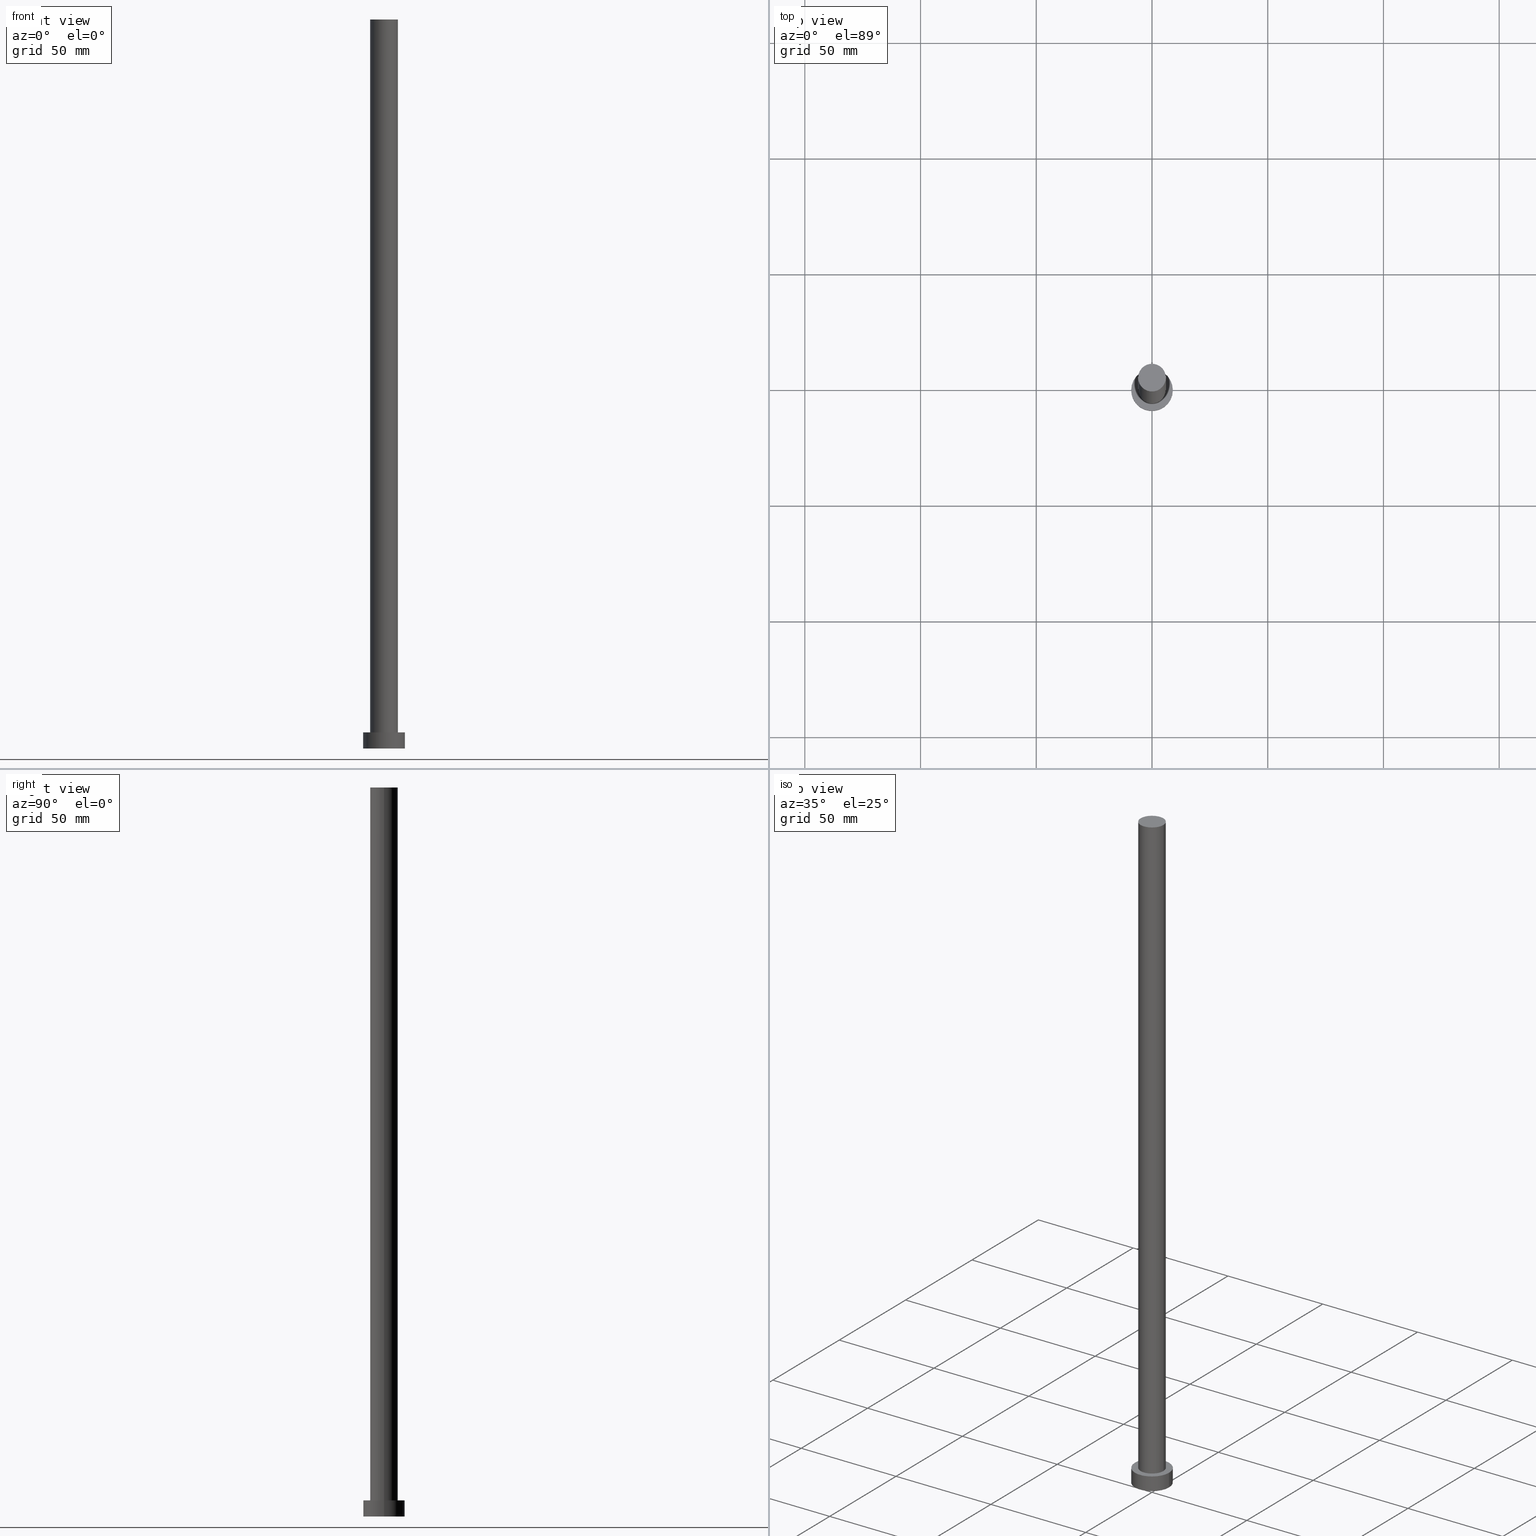
[diagram: canonical four-view strip — front | top / right | iso, engineering-drawing reading convention]
A machine part, canonical four-view strip (front | top / right | iso — engineering-drawing reading convention). The complete STEP part file that produces these views, byte-faithful:
ISO-10303-21;
HEADER;
FILE_DESCRIPTION (( 'STEP AP203' ),
    '1' );
FILE_NAME ('f374.STEP',
    '2023-02-13T08:56:27',
    ( '' ),
    ( '' ),
    'SwSTEP 2.0',
    'SolidWorks 2019',
    '' );
FILE_SCHEMA (( 'CONFIG_CONTROL_DESIGN' ));
ENDSEC;

DATA;
#1 =( GEOMETRIC_REPRESENTATION_CONTEXT ( 3 ) GLOBAL_UNCERTAINTY_ASSIGNED_CONTEXT ( ( #94 ) ) GLOBAL_UNIT_ASSIGNED_CONTEXT ( ( #123, #214, #25 ) ) REPRESENTATION_CONTEXT ( 'NONE', 'WORKASPACE' ) );
#2 = ORIENTED_EDGE ( 'NONE', *, *, #96, .T. ) ;
#3 = FACE_OUTER_BOUND ( 'NONE', #176, .T. ) ;
#4 = VERTEX_POINT ( 'NONE', #116 ) ;
#5 = AXIS2_PLACEMENT_3D ( 'NONE', #247, #115, #181 ) ;
#6 = CALENDAR_DATE ( 2023, 13, 2 ) ;
#7 = PERSON_AND_ORGANIZATION_ROLE ( 'design_owner' ) ;
#8 = APPLICATION_CONTEXT ( 'configuration controlled 3d designs of mechanical parts and assemblies' ) ;
#9 = EDGE_LOOP ( 'NONE', ( #200, #76 ) ) ;
#10 = APPROVAL ( #16, 'NEUR�EN�' ) ;
#11 = APPROVAL_DATE_TIME ( #197, #140 ) ;
#12 = CIRCLE ( 'NONE', #189, 6.000000000000000888 ) ;
#13 = ORIENTED_EDGE ( 'NONE', *, *, #182, .T. ) ;
#14 = AXIS2_PLACEMENT_3D ( 'NONE', #255, #104, #124 ) ;
#15 = LINE ( 'NONE', #228, #173 ) ;
#16 = APPROVAL_STATUS ( 'not_yet_approved' ) ;
#17 = EDGE_LOOP ( 'NONE', ( #13, #58 ) ) ;
#18 = APPROVAL_PERSON_ORGANIZATION ( #127, #90, #246 ) ;
#19 = DIRECTION ( 'NONE',  ( -0.000000000000000000, -0.000000000000000000, -1.000000000000000000 ) ) ;
#20 = DIRECTION ( 'NONE',  ( -0.000000000000000000, -0.000000000000000000, -1.000000000000000000 ) ) ;
#21 = ADVANCED_FACE ( 'NONE', ( #121 ), #33, .T. ) ;
#22 = VECTOR ( 'NONE', #20, 1000.000000000000000 ) ;
#23 = CARTESIAN_POINT ( 'NONE',  ( -6.000000000000000888, 0.000000000000000000, 7.000000000000000000 ) ) ;
#24 = DIRECTION ( 'NONE',  ( 0.000000000000000000, 0.000000000000000000, 1.000000000000000000 ) ) ;
#25 =( NAMED_UNIT ( * ) SI_UNIT ( $, .STERADIAN. ) SOLID_ANGLE_UNIT ( ) );
#26 = EDGE_CURVE ( 'NONE', #249, #130, #15, .T. ) ;
#27 = CARTESIAN_POINT ( 'NONE',  ( -9.000000000000000000, 0.000000000000000000, 7.000000000000000000 ) ) ;
#28 = CC_DESIGN_APPROVAL ( #10, ( #160 ) ) ;
#29 = FACE_OUTER_BOUND ( 'NONE', #109, .T. ) ;
#30 = CARTESIAN_POINT ( 'NONE',  ( -6.000000000000000888, 0.000000000000000000, 315.0000000000000000 ) ) ;
#31 = EDGE_CURVE ( 'NONE', #249, #198, #44, .T. ) ;
#32 = CC_DESIGN_SECURITY_CLASSIFICATION ( #160, ( #230 ) ) ;
#33 = CYLINDRICAL_SURFACE ( 'NONE', #5, 9.000000000000000000 ) ;
#34 = PERSON_AND_ORGANIZATION_ROLE ( 'creator' ) ;
#35 = EDGE_CURVE ( 'NONE', #217, #229, #171, .T. ) ;
#36 = VECTOR ( 'NONE', #152, 1000.000000000000000 ) ;
#37 = PERSON_AND_ORGANIZATION_ROLE ( 'classification_officer' ) ;
#38 = ORIENTED_EDGE ( 'NONE', *, *, #253, .F. ) ;
#39 = ORIENTED_EDGE ( 'NONE', *, *, #74, .T. ) ;
#40 = CC_DESIGN_APPROVAL ( #90, ( #213 ) ) ;
#41 = DIRECTION ( 'NONE',  ( -0.000000000000000000, -0.000000000000000000, -1.000000000000000000 ) ) ;
#42 = CC_DESIGN_DATE_AND_TIME_ASSIGNMENT ( #151, #119, ( #160 ) ) ;
#43 = CARTESIAN_POINT ( 'NONE',  ( 6.000000000000000888, 7.347880794884120722E-16, 7.000000000000000000 ) ) ;
#44 = CIRCLE ( 'NONE', #128, 6.000000000000000888 ) ;
#45 = DIRECTION ( 'NONE',  ( 1.000000000000000000, 0.000000000000000000, 0.000000000000000000 ) ) ;
#46 = CYLINDRICAL_SURFACE ( 'NONE', #14, 6.000000000000000888 ) ;
#47 = CC_DESIGN_APPROVAL ( #140, ( #230 ) ) ;
#48 = DIRECTION ( 'NONE',  ( 1.000000000000000000, 0.000000000000000000, -0.000000000000000000 ) ) ;
#49 = DIRECTION ( 'NONE',  ( 1.000000000000000000, 0.000000000000000000, 0.000000000000000000 ) ) ;
#50 = ORIENTED_EDGE ( 'NONE', *, *, #194, .T. ) ;
#51 = CYLINDRICAL_SURFACE ( 'NONE', #106, 6.000000000000000888 ) ;
#52 = LINE ( 'NONE', #27, #36 ) ;
#53 = ADVANCED_FACE ( 'NONE', ( #192 ), #46, .T. ) ;
#54 = CARTESIAN_POINT ( 'NONE',  ( 0.000000000000000000, 0.000000000000000000, 0.000000000000000000 ) ) ;
#55 = VECTOR ( 'NONE', #41, 1000.000000000000000 ) ;
#56 = PRODUCT_RELATED_PRODUCT_CATEGORY ( 'detail', '', ( #110 ) ) ;
#57 = PERSON_AND_ORGANIZATION_ROLE ( 'creator' ) ;
#58 = ORIENTED_EDGE ( 'NONE', *, *, #31, .T. ) ;
#59 = MECHANICAL_CONTEXT ( 'NONE', #8, 'mechanical' ) ;
#60 = PLANE ( 'NONE',  #134 ) ;
#61 = PERSON ( 'NEUR�EN�', 'NEUR�EN�', 'NEUR�EN�', ('NEUR�EN�'), ('NEUR�EN�'), ('NEUR�EN�') ) ;
#62 = COORDINATED_UNIVERSAL_TIME_OFFSET ( 1, 0, .AHEAD. ) ;
#63 = ORIENTED_EDGE ( 'NONE', *, *, #31, .F. ) ;
#64 = DIRECTION ( 'NONE',  ( 1.000000000000000000, 0.000000000000000000, 0.000000000000000000 ) ) ;
#65 = DIRECTION ( 'NONE',  ( 0.000000000000000000, 0.000000000000000000, 1.000000000000000000 ) ) ;
#66 = CLOSED_SHELL ( 'NONE', ( #100, #203, #21, #113, #233, #53, #70 ) ) ;
#67 = DIRECTION ( 'NONE',  ( 0.000000000000000000, 0.000000000000000000, 1.000000000000000000 ) ) ;
#68 = LINE ( 'NONE', #208, #55 ) ;
#69 = ORIENTED_EDGE ( 'NONE', *, *, #35, .F. ) ;
#70 = ADVANCED_FACE ( 'NONE', ( #153 ), #139, .T. ) ;
#71 = DIRECTION ( 'NONE',  ( 0.000000000000000000, 0.000000000000000000, 1.000000000000000000 ) ) ;
#72 = LOCAL_TIME ( 9, 56, 27.00000000000000000, #62 ) ;
#73 = PERSON_AND_ORGANIZATION ( #61, #218 ) ;
#74 = EDGE_CURVE ( 'NONE', #198, #168, #68, .T. ) ;
#75 = DATE_AND_TIME ( #6, #144 ) ;
#76 = ORIENTED_EDGE ( 'NONE', *, *, #194, .F. ) ;
#77 = COORDINATED_UNIVERSAL_TIME_OFFSET ( 1, 0, .AHEAD. ) ;
#78 = FACE_OUTER_BOUND ( 'NONE', #193, .T. ) ;
#79 = CALENDAR_DATE ( 2023, 13, 2 ) ;
#80 = EDGE_LOOP ( 'NONE', ( #204, #147, #39, #232 ) ) ;
#81 = CARTESIAN_POINT ( 'NONE',  ( 0.000000000000000000, 0.000000000000000000, 0.000000000000000000 ) ) ;
#82 = AXIS2_PLACEMENT_3D ( 'NONE', #141, #65, #45 ) ;
#83 = ORIENTED_EDGE ( 'NONE', *, *, #96, .F. ) ;
#84 = CARTESIAN_POINT ( 'NONE',  ( 6.000000000000000888, 7.347880794884120722E-16, 315.0000000000000000 ) ) ;
#85 = FACE_OUTER_BOUND ( 'NONE', #231, .T. ) ;
#86 = AXIS2_PLACEMENT_3D ( 'NONE', #54, #111, #159 ) ;
#87 = CARTESIAN_POINT ( 'NONE',  ( 0.000000000000000000, 0.000000000000000000, 7.000000000000000000 ) ) ;
#88 = AXIS2_PLACEMENT_3D ( 'NONE', #236, #105, #254 ) ;
#89 = DIRECTION ( 'NONE',  ( 1.000000000000000000, 0.000000000000000000, 0.000000000000000000 ) ) ;
#90 = APPROVAL ( #93, 'NEUR�EN�' ) ;
#91 = MANIFOLD_SOLID_BREP ( 'P�idat vysunut�m3', #66 ) ;
#92 = PERSON_AND_ORGANIZATION ( #61, #218 ) ;
#93 = APPROVAL_STATUS ( 'not_yet_approved' ) ;
#94 = UNCERTAINTY_MEASURE_WITH_UNIT (LENGTH_MEASURE( 1.000000000000000082E-05 ), #123, 'distance_accuracy_value', 'NONE');
#95 = DATE_AND_TIME ( #143, #135 ) ;
#96 = EDGE_CURVE ( 'NONE', #4, #250, #186, .T. ) ;
#97 = APPLICATION_PROTOCOL_DEFINITION ( 'international standard', 'config_control_design', 1994, #185 ) ;
#98 = CARTESIAN_POINT ( 'NONE',  ( 0.000000000000000000, 0.000000000000000000, 315.0000000000000000 ) ) ;
#99 = LOCAL_TIME ( 9, 56, 27.00000000000000000, #77 ) ;
#100 = ADVANCED_FACE ( 'NONE', ( #3 ), #51, .T. ) ;
#101 = PERSON_AND_ORGANIZATION ( #61, #218 ) ;
#102 = APPROVAL_DATE_TIME ( #120, #10 ) ;
#103 = CC_DESIGN_PERSON_AND_ORGANIZATION_ASSIGNMENT ( #101, #37, ( #160 ) ) ;
#104 = DIRECTION ( 'NONE',  ( -0.000000000000000000, -0.000000000000000000, -1.000000000000000000 ) ) ;
#105 = DIRECTION ( 'NONE',  ( -0.000000000000000000, -0.000000000000000000, -1.000000000000000000 ) ) ;
#106 = AXIS2_PLACEMENT_3D ( 'NONE', #145, #225, #184 ) ;
#107 = CARTESIAN_POINT ( 'NONE',  ( 0.000000000000000000, 0.000000000000000000, 315.0000000000000000 ) ) ;
#108 = APPROVAL_PERSON_ORGANIZATION ( #220, #140, #196 ) ;
#109 = EDGE_LOOP ( 'NONE', ( #69, #243, #201, #114 ) ) ;
#110 = PRODUCT ( 'f374', 'f374', '', ( #59 ) ) ;
#111 = DIRECTION ( 'NONE',  ( 0.000000000000000000, 0.000000000000000000, 1.000000000000000000 ) ) ;
#112 = PERSON_AND_ORGANIZATION ( #61, #218 ) ;
#113 = ADVANCED_FACE ( 'NONE', ( #248, #78 ), #60, .T. ) ;
#114 = ORIENTED_EDGE ( 'NONE', *, *, #251, .F. ) ;
#115 = DIRECTION ( 'NONE',  ( -0.000000000000000000, -0.000000000000000000, -1.000000000000000000 ) ) ;
#116 = CARTESIAN_POINT ( 'NONE',  ( -9.000000000000000000, 0.000000000000000000, 0.000000000000000000 ) ) ;
#117 = CC_DESIGN_PERSON_AND_ORGANIZATION_ASSIGNMENT ( #73, #34, ( #230 ) ) ;
#118 = DIRECTION ( 'NONE',  ( 0.000000000000000000, 0.000000000000000000, 1.000000000000000000 ) ) ;
#119 = DATE_TIME_ROLE ( 'classification_date' ) ;
#120 = DATE_AND_TIME ( #79, #72 ) ;
#121 = FACE_OUTER_BOUND ( 'NONE', #187, .T. ) ;
#122 = CC_DESIGN_PERSON_AND_ORGANIZATION_ASSIGNMENT ( #92, #183, ( #230 ) ) ;
#123 =( LENGTH_UNIT ( ) NAMED_UNIT ( * ) SI_UNIT ( .MILLI., .METRE. ) );
#124 = DIRECTION ( 'NONE',  ( -1.000000000000000000, 0.000000000000000000, 0.000000000000000000 ) ) ;
#125 = CARTESIAN_POINT ( 'NONE',  ( 9.000000000000000000, 1.102182119232617714E-15, 0.000000000000000000 ) ) ;
#126 = AXIS2_PLACEMENT_3D ( 'NONE', #142, #71, #48 ) ;
#127 = PERSON_AND_ORGANIZATION ( #61, #218 ) ;
#128 = AXIS2_PLACEMENT_3D ( 'NONE', #98, #188, #138 ) ;
#129 = DIRECTION ( 'NONE',  ( 1.000000000000000000, 0.000000000000000000, 0.000000000000000000 ) ) ;
#130 = VERTEX_POINT ( 'NONE', #43 ) ;
#131 = AXIS2_PLACEMENT_3D ( 'NONE', #81, #148, #64 ) ;
#132 = DIRECTION ( 'NONE',  ( 0.000000000000000000, 0.000000000000000000, 1.000000000000000000 ) ) ;
#133 = ORIENTED_EDGE ( 'NONE', *, *, #253, .T. ) ;
#134 = AXIS2_PLACEMENT_3D ( 'NONE', #202, #118, #170 ) ;
#135 = LOCAL_TIME ( 9, 56, 27.00000000000000000, #241 ) ;
#136 = EDGE_CURVE ( 'NONE', #250, #4, #234, .T. ) ;
#137 = CARTESIAN_POINT ( 'NONE',  ( 0.000000000000000000, 0.000000000000000000, 315.0000000000000000 ) ) ;
#138 = DIRECTION ( 'NONE',  ( 1.000000000000000000, 0.000000000000000000, 0.000000000000000000 ) ) ;
#139 = PLANE ( 'NONE',  #206 ) ;
#140 = APPROVAL ( #146, 'NEUR�EN�' ) ;
#141 = CARTESIAN_POINT ( 'NONE',  ( 0.000000000000000000, 0.000000000000000000, 7.000000000000000000 ) ) ;
#142 = CARTESIAN_POINT ( 'NONE',  ( 0.000000000000000000, 0.000000000000000000, 0.000000000000000000 ) ) ;
#143 = CALENDAR_DATE ( 2023, 13, 2 ) ;
#144 = LOCAL_TIME ( 9, 56, 27.00000000000000000, #179 ) ;
#145 = CARTESIAN_POINT ( 'NONE',  ( 0.000000000000000000, 0.000000000000000000, 315.0000000000000000 ) ) ;
#146 = APPROVAL_STATUS ( 'not_yet_approved' ) ;
#147 = ORIENTED_EDGE ( 'NONE', *, *, #182, .F. ) ;
#148 = DIRECTION ( 'NONE',  ( 0.000000000000000000, 0.000000000000000000, 1.000000000000000000 ) ) ;
#149 = EDGE_CURVE ( 'NONE', #217, #250, #205, .T. ) ;
#150 = ORIENTED_EDGE ( 'NONE', *, *, #251, .T. ) ;
#151 = DATE_AND_TIME ( #165, #222 ) ;
#152 = DIRECTION ( 'NONE',  ( -0.000000000000000000, -0.000000000000000000, -1.000000000000000000 ) ) ;
#153 = FACE_OUTER_BOUND ( 'NONE', #17, .T. ) ;
#154 = AXIS2_PLACEMENT_3D ( 'NONE', #172, #212, #89 ) ;
#155 = DIRECTION ( 'NONE',  ( 1.000000000000000000, 0.000000000000000000, -0.000000000000000000 ) ) ;
#156 = PRODUCT_DEFINITION_SHAPE ( 'NONE', 'NONE',  #213 ) ;
#157 = CARTESIAN_POINT ( 'NONE',  ( 0.000000000000000000, 0.000000000000000000, 7.000000000000000000 ) ) ;
#158 = CC_DESIGN_DATE_AND_TIME_ASSIGNMENT ( #95, #199, ( #213 ) ) ;
#159 = DIRECTION ( 'NONE',  ( 1.000000000000000000, 0.000000000000000000, 0.000000000000000000 ) ) ;
#160 = SECURITY_CLASSIFICATION ( '', '', #163 ) ;
#161 = ORIENTED_EDGE ( 'NONE', *, *, #26, .T. ) ;
#162 = CC_DESIGN_PERSON_AND_ORGANIZATION_ASSIGNMENT ( #112, #7, ( #110 ) ) ;
#163 = SECURITY_CLASSIFICATION_LEVEL ( 'unclassified' ) ;
#164 = ORIENTED_EDGE ( 'NONE', *, *, #74, .F. ) ;
#165 = CALENDAR_DATE ( 2023, 13, 2 ) ;
#166 = ORIENTED_EDGE ( 'NONE', *, *, #35, .T. ) ;
#167 = SHAPE_DEFINITION_REPRESENTATION ( #156, #226 ) ;
#168 = VERTEX_POINT ( 'NONE', #23 ) ;
#169 = CIRCLE ( 'NONE', #82, 6.000000000000000888 ) ;
#170 = DIRECTION ( 'NONE',  ( 1.000000000000000000, 0.000000000000000000, -0.000000000000000000 ) ) ;
#171 = CIRCLE ( 'NONE', #180, 9.000000000000000000 ) ;
#172 = CARTESIAN_POINT ( 'NONE',  ( 0.000000000000000000, 0.000000000000000000, 7.000000000000000000 ) ) ;
#173 = VECTOR ( 'NONE', #19, 1000.000000000000000 ) ;
#174 = DIRECTION ( 'NONE',  ( 0.000000000000000000, 0.000000000000000000, 1.000000000000000000 ) ) ;
#175 = CARTESIAN_POINT ( 'NONE',  ( -9.000000000000000000, 0.000000000000000000, 7.000000000000000000 ) ) ;
#176 = EDGE_LOOP ( 'NONE', ( #63, #161, #50, #164 ) ) ;
#177 = APPROVAL_PERSON_ORGANIZATION ( #210, #10, #252 ) ;
#178 = CYLINDRICAL_SURFACE ( 'NONE', #88, 9.000000000000000000 ) ;
#179 = COORDINATED_UNIVERSAL_TIME_OFFSET ( 1, 0, .AHEAD. ) ;
#180 = AXIS2_PLACEMENT_3D ( 'NONE', #87, #67, #190 ) ;
#181 = DIRECTION ( 'NONE',  ( -1.000000000000000000, 0.000000000000000000, 0.000000000000000000 ) ) ;
#182 = EDGE_CURVE ( 'NONE', #198, #249, #209, .T. ) ;
#183 = PERSON_AND_ORGANIZATION_ROLE ( 'design_supplier' ) ;
#184 = DIRECTION ( 'NONE',  ( -1.000000000000000000, 0.000000000000000000, 0.000000000000000000 ) ) ;
#185 = APPLICATION_CONTEXT ( 'configuration controlled 3d designs of mechanical parts and assemblies' ) ;
#186 = CIRCLE ( 'NONE', #86, 9.000000000000000000 ) ;
#187 = EDGE_LOOP ( 'NONE', ( #227, #38, #150, #2 ) ) ;
#188 = DIRECTION ( 'NONE',  ( 0.000000000000000000, 0.000000000000000000, 1.000000000000000000 ) ) ;
#189 = AXIS2_PLACEMENT_3D ( 'NONE', #157, #216, #49 ) ;
#190 = DIRECTION ( 'NONE',  ( 1.000000000000000000, 0.000000000000000000, 0.000000000000000000 ) ) ;
#191 = CARTESIAN_POINT ( 'NONE',  ( 9.000000000000000000, 1.102182119232617714E-15, 7.000000000000000000 ) ) ;
#192 = FACE_OUTER_BOUND ( 'NONE', #80, .T. ) ;
#193 = EDGE_LOOP ( 'NONE', ( #133, #166 ) ) ;
#194 = EDGE_CURVE ( 'NONE', #130, #168, #12, .T. ) ;
#195 = AXIS2_PLACEMENT_3D ( 'NONE', #137, #24, #235 ) ;
#196 = APPROVAL_ROLE ( '' ) ;
#197 = DATE_AND_TIME ( #221, #99 ) ;
#198 = VERTEX_POINT ( 'NONE', #30 ) ;
#199 = DATE_TIME_ROLE ( 'creation_date' ) ;
#200 = ORIENTED_EDGE ( 'NONE', *, *, #238, .F. ) ;
#201 = ORIENTED_EDGE ( 'NONE', *, *, #136, .T. ) ;
#202 = CARTESIAN_POINT ( 'NONE',  ( 0.000000000000000000, 0.000000000000000000, 7.000000000000000000 ) ) ;
#203 = ADVANCED_FACE ( 'NONE', ( #29 ), #178, .T. ) ;
#204 = ORIENTED_EDGE ( 'NONE', *, *, #26, .F. ) ;
#205 = LINE ( 'NONE', #191, #22 ) ;
#206 = AXIS2_PLACEMENT_3D ( 'NONE', #107, #174, #155 ) ;
#207 = COORDINATED_UNIVERSAL_TIME_OFFSET ( 1, 0, .AHEAD. ) ;
#208 = CARTESIAN_POINT ( 'NONE',  ( -6.000000000000000888, 0.000000000000000000, 315.0000000000000000 ) ) ;
#209 = CIRCLE ( 'NONE', #195, 6.000000000000000888 ) ;
#210 = PERSON_AND_ORGANIZATION ( #61, #218 ) ;
#211 = CC_DESIGN_PERSON_AND_ORGANIZATION_ASSIGNMENT ( #223, #57, ( #213 ) ) ;
#212 = DIRECTION ( 'NONE',  ( 0.000000000000000000, 0.000000000000000000, 1.000000000000000000 ) ) ;
#213 = PRODUCT_DEFINITION ( 'NEZN�M�', '', #230, #245 ) ;
#214 =( NAMED_UNIT ( * ) PLANE_ANGLE_UNIT ( ) SI_UNIT ( $, .RADIAN. ) );
#215 = CIRCLE ( 'NONE', #154, 9.000000000000000000 ) ;
#216 = DIRECTION ( 'NONE',  ( 0.000000000000000000, 0.000000000000000000, 1.000000000000000000 ) ) ;
#217 = VERTEX_POINT ( 'NONE', #239 ) ;
#218 = ORGANIZATION ( 'NEUR�EN�', 'NEUR�EN�', '' ) ;
#219 = APPLICATION_PROTOCOL_DEFINITION ( 'international standard', 'config_control_design', 1994, #8 ) ;
#220 = PERSON_AND_ORGANIZATION ( #61, #218 ) ;
#221 = CALENDAR_DATE ( 2023, 13, 2 ) ;
#222 = LOCAL_TIME ( 9, 56, 27.00000000000000000, #207 ) ;
#223 = PERSON_AND_ORGANIZATION ( #61, #218 ) ;
#224 = ORIENTED_EDGE ( 'NONE', *, *, #136, .F. ) ;
#225 = DIRECTION ( 'NONE',  ( -0.000000000000000000, -0.000000000000000000, -1.000000000000000000 ) ) ;
#226 = ADVANCED_BREP_SHAPE_REPRESENTATION ( 'f374', ( #91, #244 ), #1 ) ;
#227 = ORIENTED_EDGE ( 'NONE', *, *, #149, .F. ) ;
#228 = CARTESIAN_POINT ( 'NONE',  ( 6.000000000000000888, 7.347880794884120722E-16, 315.0000000000000000 ) ) ;
#229 = VERTEX_POINT ( 'NONE', #175 ) ;
#230 = PRODUCT_DEFINITION_FORMATION_WITH_SPECIFIED_SOURCE ( 'LIBOVOLN�', '', #110, .NOT_KNOWN. ) ;
#231 = EDGE_LOOP ( 'NONE', ( #83, #224 ) ) ;
#232 = ORIENTED_EDGE ( 'NONE', *, *, #238, .T. ) ;
#233 = ADVANCED_FACE ( 'NONE', ( #85 ), #237, .F. ) ;
#234 = CIRCLE ( 'NONE', #131, 9.000000000000000000 ) ;
#235 = DIRECTION ( 'NONE',  ( 1.000000000000000000, 0.000000000000000000, 0.000000000000000000 ) ) ;
#236 = CARTESIAN_POINT ( 'NONE',  ( 0.000000000000000000, 0.000000000000000000, 7.000000000000000000 ) ) ;
#237 = PLANE ( 'NONE',  #126 ) ;
#238 = EDGE_CURVE ( 'NONE', #168, #130, #169, .T. ) ;
#239 = CARTESIAN_POINT ( 'NONE',  ( 9.000000000000000000, 1.102182119232617714E-15, 7.000000000000000000 ) ) ;
#240 = CARTESIAN_POINT ( 'NONE',  ( 0.000000000000000000, 0.000000000000000000, 0.000000000000000000 ) ) ;
#241 = COORDINATED_UNIVERSAL_TIME_OFFSET ( 1, 0, .AHEAD. ) ;
#242 = APPROVAL_DATE_TIME ( #75, #90 ) ;
#243 = ORIENTED_EDGE ( 'NONE', *, *, #149, .T. ) ;
#244 = AXIS2_PLACEMENT_3D ( 'NONE', #240, #132, #129 ) ;
#245 = DESIGN_CONTEXT ( 'detailed design', #185, 'design' ) ;
#246 = APPROVAL_ROLE ( '' ) ;
#247 = CARTESIAN_POINT ( 'NONE',  ( 0.000000000000000000, 0.000000000000000000, 7.000000000000000000 ) ) ;
#248 = FACE_BOUND ( 'NONE', #9, .T. ) ;
#249 = VERTEX_POINT ( 'NONE', #84 ) ;
#250 = VERTEX_POINT ( 'NONE', #125 ) ;
#251 = EDGE_CURVE ( 'NONE', #229, #4, #52, .T. ) ;
#252 = APPROVAL_ROLE ( '' ) ;
#253 = EDGE_CURVE ( 'NONE', #229, #217, #215, .T. ) ;
#254 = DIRECTION ( 'NONE',  ( -1.000000000000000000, 0.000000000000000000, 0.000000000000000000 ) ) ;
#255 = CARTESIAN_POINT ( 'NONE',  ( 0.000000000000000000, 0.000000000000000000, 315.0000000000000000 ) ) ;
ENDSEC;
END-ISO-10303-21;
